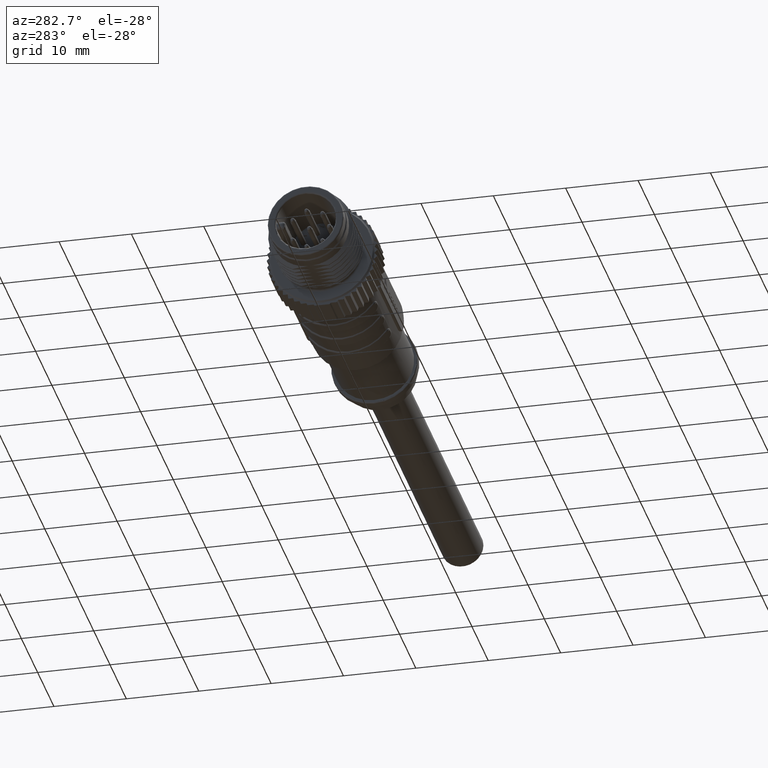
[diagram: clean part render]
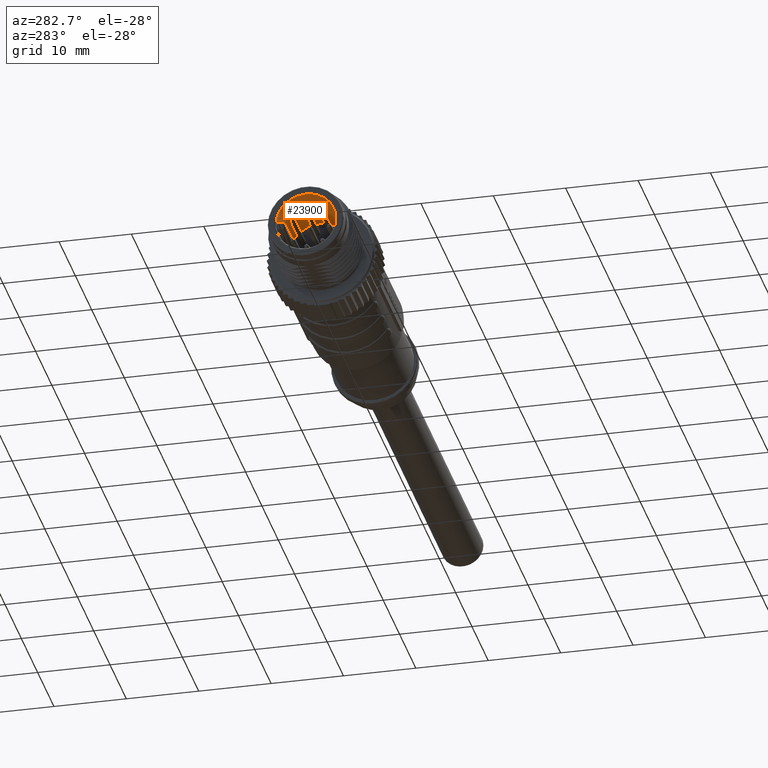
[diagram: same view with one face highlighted and labeled with its STEP entity id]
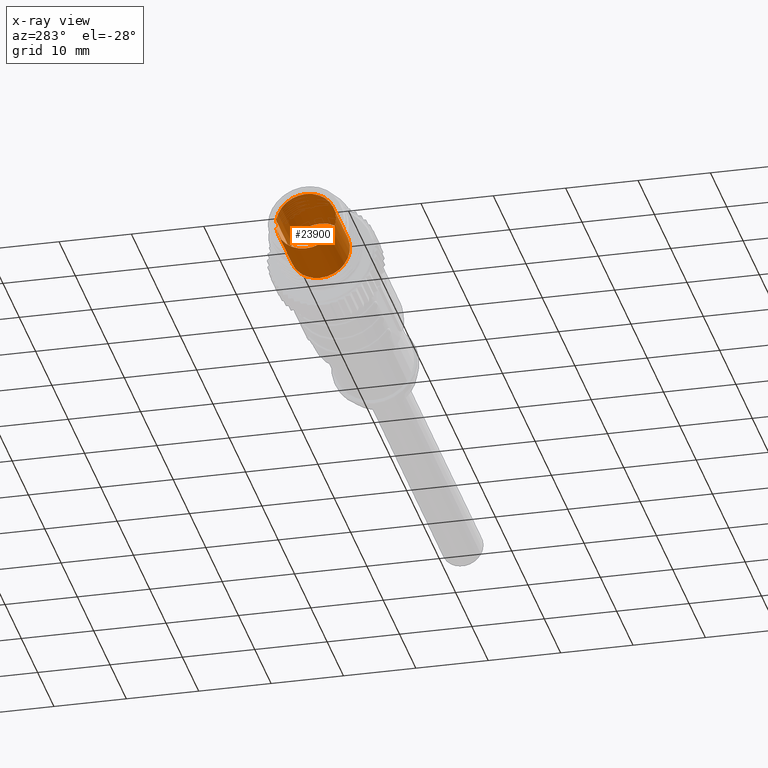
[diagram: x-ray of the same camera — body ghosted, the highlighted face saturated]
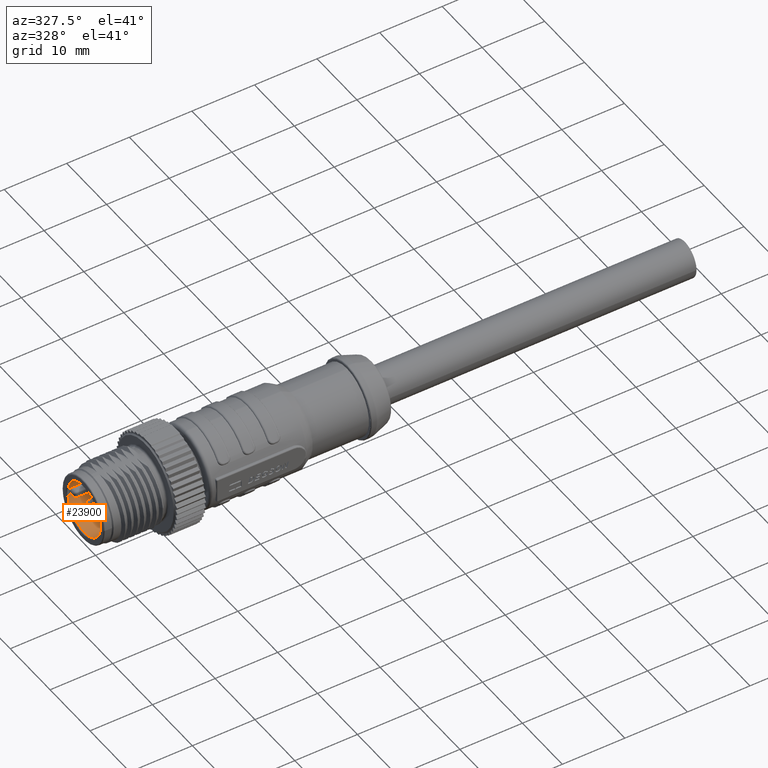
[diagram: same view with one face highlighted and labeled with its STEP entity id]
A machine part, auxiliary view. The second image highlights one B-rep face of the part: STEP entity #23900.
The next image is the same camera in x-ray: the body ghosted, the highlighted face saturated — about 0% of this face is hidden behind the body in this view.
A second angle (auxiliary view) of the same face is appended — the face is thin or edge-on in the first view.
In plain terms, the highlighted cylindrical surface (edge-blend (fillet) strip) has radius 4.15 mm, axis along (-1, 0, 0).
Its self-contained STEP definition (entity closure, byte-faithful):
#5204=CARTESIAN_POINT('',(-1.8E0,0.E0,0.E0));
#5205=DIRECTION('',(-1.E0,0.E0,0.E0));
#5206=DIRECTION('',(0.E0,9.894933609362E-1,-1.445783132530E-1));
#5207=AXIS2_PLACEMENT_3D('',#5204,#5205,#5206);
#5209=CARTESIAN_POINT('',(-1.8E0,0.E0,0.E0));
#5210=DIRECTION('',(-1.E0,0.E0,0.E0));
#5211=DIRECTION('',(0.E0,0.E0,-1.E0));
#5212=AXIS2_PLACEMENT_3D('',#5209,#5210,#5211);
#5214=CARTESIAN_POINT('',(-1.8E0,0.E0,0.E0));
#5215=DIRECTION('',(-1.E0,0.E0,0.E0));
#5216=DIRECTION('',(0.E0,-9.997600766899E-1,-2.190408767578E-2));
#5217=AXIS2_PLACEMENT_3D('',#5214,#5215,#5216);
#5219=CARTESIAN_POINT('',(-1.8E0,0.E0,0.E0));
#5220=DIRECTION('',(-1.E0,0.E0,0.E0));
#5221=DIRECTION('',(0.E0,0.E0,1.E0));
#5222=AXIS2_PLACEMENT_3D('',#5219,#5220,#5221);
#5229=DIRECTION('',(1.E0,-8.230453355888E-13,1.228646813919E-13));
#5230=VECTOR('',#5229,3.E-1);
#5231=CARTESIAN_POINT('',(-1.8E0,4.106397447886E0,-6.E-1));
#5232=LINE('',#5231,#5230);
#5233=CARTESIAN_POINT('',(-1.5E0,0.E0,0.E0));
#5234=DIRECTION('',(1.E0,0.E0,0.E0));
#5235=DIRECTION('',(0.E0,9.894933609362E-1,-1.445783132530E-1));
#5236=AXIS2_PLACEMENT_3D('',#5233,#5234,#5235);
#5238=DIRECTION('',(1.E0,3.414342854544E-9,-1.728510191772E-11));
#5239=VECTOR('',#5238,7.900001148561E0);
#5240=CARTESIAN_POINT('',(-1.000001148561E0,4.106397416889E0,
-6.000000009558E-1));
#5241=LINE('',#5240,#5239);
#5242=DIRECTION('',(-1.E0,-1.699327077386E-10,0.E0));
#5243=VECTOR('',#5242,7.899999809136E0);
#5244=CARTESIAN_POINT('',(6.9E0,4.106397447026E0,6.000000001434E-1));
#5245=LINE('',#5244,#5243);
#5246=CARTESIAN_POINT('',(-1.5E0,0.E0,0.E0));
#5247=DIRECTION('',(1.E0,0.E0,0.E0));
#5248=DIRECTION('',(0.E0,9.997096399474E-1,2.409638554217E-2));
#5249=AXIS2_PLACEMENT_3D('',#5246,#5247,#5248);
#5251=DIRECTION('',(-1.E0,8.289665250535E-13,8.733754460385E-14));
#5252=VECTOR('',#5251,3.E-1);
#5253=CARTESIAN_POINT('',(-1.5E0,4.106397447885E0,5.999999999999E-1));
#5254=LINE('',#5253,#5252);
#5268=CARTESIAN_POINT('',(-1.000001148561E0,4.106397416889E0,
-6.000000009558E-1));
#5269=CARTESIAN_POINT('',(-1.064980922020E0,4.106397416889E0,
-6.000000009558E-1));
#5270=CARTESIAN_POINT('',(-1.195247749921E0,4.110268558312E0,
-5.743549151907E-1));
#5271=CARTESIAN_POINT('',(-1.362159458251E0,4.124849861173E0,
-4.634837461208E-1));
#5272=CARTESIAN_POINT('',(-1.473974669576E0,4.140798574089E0,
-2.964849003623E-1));
#5273=CARTESIAN_POINT('',(-1.5E0,4.147216407302E0,-1.654928148785E-1));
#5274=CARTESIAN_POINT('',(-1.5E0,4.148795005782E0,-9.999999999998E-2));
#5350=CARTESIAN_POINT('',(-1.5E0,4.148795005782E0,1.E-1));
#5351=CARTESIAN_POINT('',(-1.5E0,4.147225583948E0,1.651120946730E-1));
#5352=CARTESIAN_POINT('',(-1.474285433136E0,4.140859537251E0,
2.955772788728E-1));
#5353=CARTESIAN_POINT('',(-1.362924264360E0,4.124937651802E0,
4.627552588891E-1));
#5354=CARTESIAN_POINT('',(-1.195901678276E0,4.110298849801E0,
5.741580539403E-1));
#5355=CARTESIAN_POINT('',(-1.065234440441E0,4.106397445684E0,
6.000000001434E-1));
#5356=CARTESIAN_POINT('',(-9.999998091355E-1,4.106397445684E0,
6.000000001434E-1));
#5362=CARTESIAN_POINT('',(6.9E0,0.E0,0.E0));
#5363=DIRECTION('',(1.E0,0.E0,0.E0));
#5364=DIRECTION('',(0.E0,9.894933609362E-1,1.445783132530E-1));
#5365=AXIS2_PLACEMENT_3D('',#5362,#5363,#5364);
#5367=CARTESIAN_POINT('',(6.9E0,0.E0,0.E0));
#5368=DIRECTION('',(1.E0,0.E0,0.E0));
#5369=DIRECTION('',(0.E0,0.E0,1.E0));
#5370=AXIS2_PLACEMENT_3D('',#5367,#5368,#5369);
#5372=CARTESIAN_POINT('',(6.9E0,0.E0,0.E0));
#5373=DIRECTION('',(1.E0,0.E0,0.E0));
#5374=DIRECTION('',(0.E0,-9.894933609362E-1,-1.445783132530E-1));
#5375=AXIS2_PLACEMENT_3D('',#5372,#5373,#5374);
#5377=CARTESIAN_POINT('',(6.9E0,0.E0,0.E0));
#5378=DIRECTION('',(1.E0,0.E0,0.E0));
#5379=DIRECTION('',(0.E0,0.E0,-1.E0));
#5380=AXIS2_PLACEMENT_3D('',#5377,#5378,#5379);
#14107=CARTESIAN_POINT('',(-1.8E0,4.106397447884E0,5.999999999997E-1));
#14108=VERTEX_POINT('',#14107);
#14109=CARTESIAN_POINT('',(-1.8E0,4.106397447887E0,-6.000000000003E-1));
#14110=VERTEX_POINT('',#14109);
#14111=CARTESIAN_POINT('',(-1.8E0,0.E0,-4.149999999999E0));
#14112=VERTEX_POINT('',#14111);
#14113=CARTESIAN_POINT('',(-1.8E0,-4.149004318262E0,-9.090196385447E-2));
#14114=VERTEX_POINT('',#14113);
#14115=CARTESIAN_POINT('',(-1.8E0,0.E0,4.149999999999E0));
#14116=VERTEX_POINT('',#14115);
#14117=CARTESIAN_POINT('',(-1.5E0,4.106397447885E0,-6.E-1));
#14118=VERTEX_POINT('',#14117);
#14119=CARTESIAN_POINT('',(-1.5E0,4.148795005782E0,-9.999999999998E-2));
#14120=VERTEX_POINT('',#14119);
#14121=VERTEX_POINT('',#5268);
#14122=CARTESIAN_POINT('',(6.9E0,4.106397443863E0,-6.000000010924E-1));
#14123=VERTEX_POINT('',#14122);
#14124=CARTESIAN_POINT('',(6.9E0,4.106397447885E0,6.000000000001E-1));
#14125=CARTESIAN_POINT('',(6.9E0,0.E0,4.15E0));
#14126=VERTEX_POINT('',#14124);
#14127=VERTEX_POINT('',#14125);
#14128=CARTESIAN_POINT('',(6.9E0,-4.106397447885E0,-6.E-1));
#14129=VERTEX_POINT('',#14128);
#14130=CARTESIAN_POINT('',(6.9E0,0.E0,-4.15E0));
#14131=VERTEX_POINT('',#14130);
#14132=CARTESIAN_POINT('',(-9.999998091355E-1,4.106397445684E0,
6.000000001434E-1));
#14133=VERTEX_POINT('',#14132);
#14134=VERTEX_POINT('',#5350);
#14135=CARTESIAN_POINT('',(-1.5E0,4.106397447885E0,5.999999999999E-1));
#14136=VERTEX_POINT('',#14135);
#23865=CARTESIAN_POINT('',(7.074E0,0.E0,0.E0));
#23866=DIRECTION('',(-1.E0,0.E0,0.E0));
#23867=DIRECTION('',(0.E0,0.E0,1.E0));
#23868=AXIS2_PLACEMENT_3D('',#23865,#23866,#23867);
#23869=CYLINDRICAL_SURFACE('',#23868,4.15E0);
#23870=ORIENTED_EDGE('',*,*,#23859,.F.);
#23871=ORIENTED_EDGE('',*,*,#23857,.F.);
#23872=ORIENTED_EDGE('',*,*,#23855,.F.);
#23873=ORIENTED_EDGE('',*,*,#23853,.F.);
#23875=ORIENTED_EDGE('',*,*,#23874,.T.);
#23877=ORIENTED_EDGE('',*,*,#23876,.T.);
#23879=ORIENTED_EDGE('',*,*,#23878,.F.);
#23881=ORIENTED_EDGE('',*,*,#23880,.T.);
#23883=ORIENTED_EDGE('',*,*,#23882,.F.);
#23885=ORIENTED_EDGE('',*,*,#23884,.F.);
#23887=ORIENTED_EDGE('',*,*,#23886,.F.);
#23889=ORIENTED_EDGE('',*,*,#23888,.F.);
#23891=ORIENTED_EDGE('',*,*,#23890,.T.);
#23893=ORIENTED_EDGE('',*,*,#23892,.F.);
#23895=ORIENTED_EDGE('',*,*,#23894,.T.);
#23897=ORIENTED_EDGE('',*,*,#23896,.T.);
#23898=EDGE_LOOP('',(#23870,#23871,#23872,#23873,#23875,#23877,#23879,#23881,
#23883,#23885,#23887,#23889,#23891,#23893,#23895,#23897));
#23899=FACE_OUTER_BOUND('',#23898,.F.);
#23900=ADVANCED_FACE('',(#23899),#23869,.F.);
#5208=CIRCLE('',#5207,4.149999999999E0);
#5213=CIRCLE('',#5212,4.149999999999E0);
#5218=CIRCLE('',#5217,4.149999999999E0);
#5223=CIRCLE('',#5222,4.149999999999E0);
#5237=CIRCLE('',#5236,4.15E0);
#5250=CIRCLE('',#5249,4.15E0);
#5275=B_SPLINE_CURVE_WITH_KNOTS('',3,(#5268,#5269,#5270,#5271,#5272,#5273,
#5274),.UNSPECIFIED.,.F.,.F.,(4,1,1,1,4),(0.E0,2.5E-1,5.E-1,7.5E-1,1.E0),
.UNSPECIFIED.);
#5357=B_SPLINE_CURVE_WITH_KNOTS('',3,(#5350,#5351,#5352,#5353,#5354,#5355,
#5356),.UNSPECIFIED.,.F.,.F.,(4,1,1,1,4),(0.E0,2.5E-1,5.E-1,7.5E-1,1.E0),
.UNSPECIFIED.);
#5366=CIRCLE('',#5365,4.15E0);
#5371=CIRCLE('',#5370,4.15E0);
#5376=CIRCLE('',#5375,4.15E0);
#5381=CIRCLE('',#5380,4.15E0);
#23853=EDGE_CURVE('',#14110,#14112,#5208,.T.);
#23855=EDGE_CURVE('',#14112,#14114,#5213,.T.);
#23857=EDGE_CURVE('',#14114,#14116,#5218,.T.);
#23859=EDGE_CURVE('',#14116,#14108,#5223,.T.);
#23874=EDGE_CURVE('',#14110,#14118,#5232,.T.);
#23876=EDGE_CURVE('',#14118,#14120,#5237,.T.);
#23878=EDGE_CURVE('',#14121,#14120,#5275,.T.);
#23880=EDGE_CURVE('',#14121,#14123,#5241,.T.);
#23882=EDGE_CURVE('',#14131,#14123,#5381,.T.);
#23884=EDGE_CURVE('',#14129,#14131,#5376,.T.);
#23886=EDGE_CURVE('',#14127,#14129,#5371,.T.);
#23888=EDGE_CURVE('',#14126,#14127,#5366,.T.);
#23890=EDGE_CURVE('',#14126,#14133,#5245,.T.);
#23892=EDGE_CURVE('',#14134,#14133,#5357,.T.);
#23894=EDGE_CURVE('',#14134,#14136,#5250,.T.);
#23896=EDGE_CURVE('',#14136,#14108,#5254,.T.);